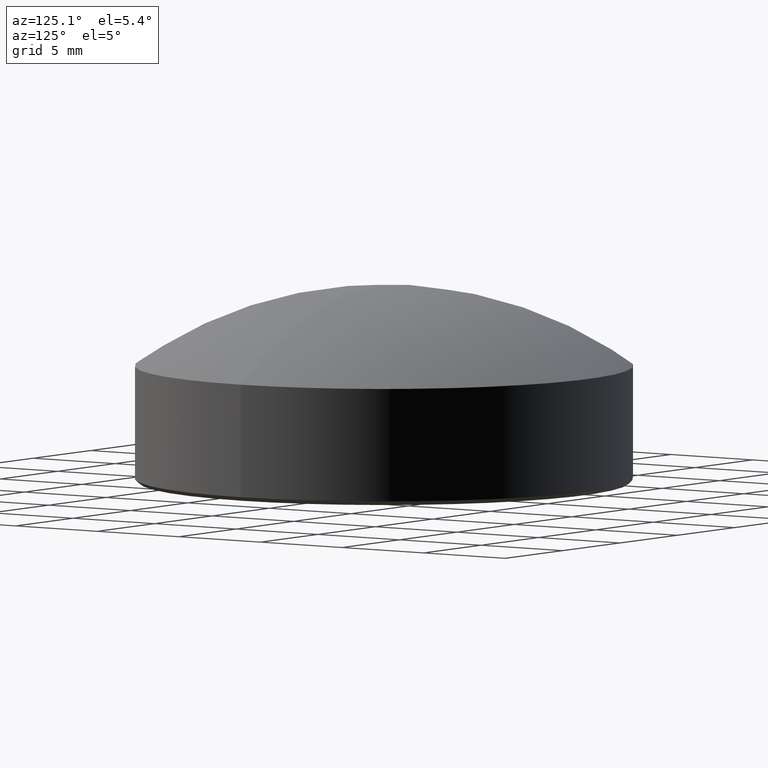
[diagram: clean part render]
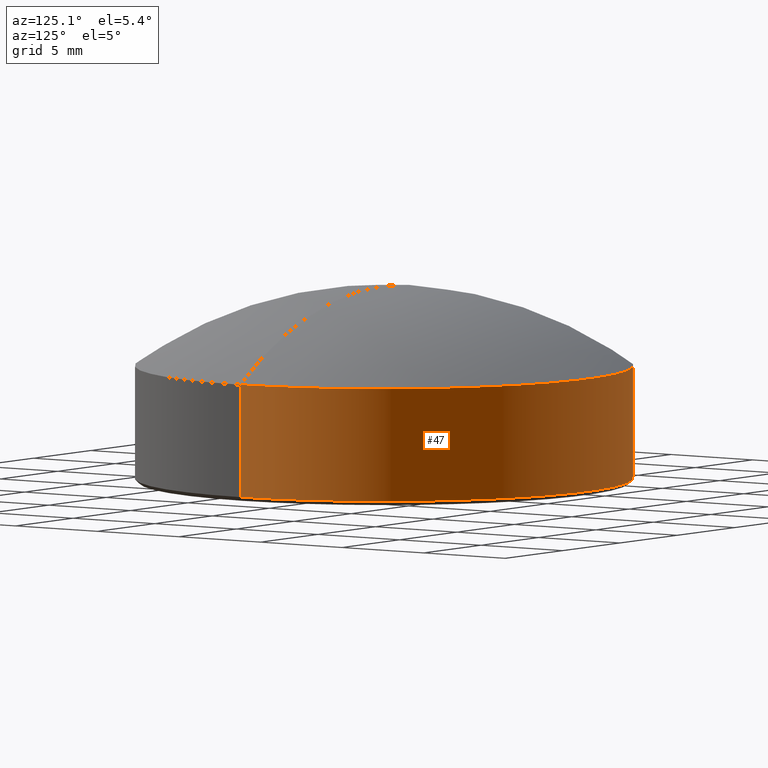
[diagram: same view with one face highlighted and labeled with its STEP entity id]
A machine part, auxiliary view. The second image highlights one B-rep face of the part: STEP entity #47.
In plain terms, the highlighted cylindrical surface (partial cylindrical patch) has radius 12.5 mm, axis along (-0, -0, -1).
Its self-contained STEP definition (entity closure, byte-faithful):
#9 = ORIENTED_EDGE ( 'NONE', *, *, #77, .F. ) ;
#12 = CYLINDRICAL_SURFACE ( 'NONE', #26, 12.50000000000000000 ) ;
#16 = VERTEX_POINT ( 'NONE', #179 ) ;
#18 = FACE_OUTER_BOUND ( 'NONE', #70, .T. ) ;
#21 = CIRCLE ( 'NONE', #49, 12.50000000000000000 ) ;
#26 = AXIS2_PLACEMENT_3D ( 'NONE', #212, #213, #29 ) ;
#29 = DIRECTION ( 'NONE',  ( -1.000000000000000000, 0.000000000000000000, 0.000000000000000000 ) ) ;
#33 = VERTEX_POINT ( 'NONE', #161 ) ;
#36 = LINE ( 'NONE', #166, #108 ) ;
#40 = CARTESIAN_POINT ( 'NONE',  ( -12.50000000000000000, 0.000000000000000000, 5.860000000000000320 ) ) ;
#43 = VERTEX_POINT ( 'NONE', #100 ) ;
#47 = ADVANCED_FACE ( 'NONE', ( #18 ), #12, .T. ) ;
#49 = AXIS2_PLACEMENT_3D ( 'NONE', #195, #66, #84 ) ;
#52 = DIRECTION ( 'NONE',  ( 1.000000000000000000, 0.000000000000000000, 0.000000000000000000 ) ) ;
#64 = ORIENTED_EDGE ( 'NONE', *, *, #191, .T. ) ;
#66 = DIRECTION ( 'NONE',  ( 0.000000000000000000, 0.000000000000000000, 1.000000000000000000 ) ) ;
#70 = EDGE_LOOP ( 'NONE', ( #9, #64, #129, #114 ) ) ;
#74 = DIRECTION ( 'NONE',  ( -0.000000000000000000, -0.000000000000000000, -1.000000000000000000 ) ) ;
#77 = EDGE_CURVE ( 'NONE', #16, #145, #21, .T. ) ;
#84 = DIRECTION ( 'NONE',  ( 1.000000000000000000, 0.000000000000000000, 0.000000000000000000 ) ) ;
#98 = VECTOR ( 'NONE', #133, 1000.000000000000000 ) ;
#100 = CARTESIAN_POINT ( 'NONE',  ( -12.50000000000000000, 0.000000000000000000, 0.2000000000000178857 ) ) ;
#108 = VECTOR ( 'NONE', #74, 1000.000000000000000 ) ;
#112 = EDGE_CURVE ( 'NONE', #33, #43, #164, .T. ) ;
#114 = ORIENTED_EDGE ( 'NONE', *, *, #122, .F. ) ;
#122 = EDGE_CURVE ( 'NONE', #145, #43, #137, .T. ) ;
#124 = CARTESIAN_POINT ( 'NONE',  ( -12.50000000000000000, 0.000000000000000000, 5.860000000000000320 ) ) ;
#129 = ORIENTED_EDGE ( 'NONE', *, *, #112, .T. ) ;
#130 = CARTESIAN_POINT ( 'NONE',  ( 0.000000000000000000, 0.000000000000000000, 0.2000000000000178857 ) ) ;
#133 = DIRECTION ( 'NONE',  ( -0.000000000000000000, -0.000000000000000000, -1.000000000000000000 ) ) ;
#137 = LINE ( 'NONE', #40, #98 ) ;
#145 = VERTEX_POINT ( 'NONE', #124 ) ;
#161 = CARTESIAN_POINT ( 'NONE',  ( 12.50000000000000000, 1.530808498934191127E-15, 0.2000000000000178857 ) ) ;
#164 = CIRCLE ( 'NONE', #192, 12.50000000000000000 ) ;
#166 = CARTESIAN_POINT ( 'NONE',  ( 12.50000000000000000, 1.530808498934191127E-15, 5.860000000000000320 ) ) ;
#179 = CARTESIAN_POINT ( 'NONE',  ( 12.50000000000000000, 1.530808498934191127E-15, 5.860000000000000320 ) ) ;
#191 = EDGE_CURVE ( 'NONE', #16, #33, #36, .T. ) ;
#192 = AXIS2_PLACEMENT_3D ( 'NONE', #130, #216, #52 ) ;
#195 = CARTESIAN_POINT ( 'NONE',  ( 0.000000000000000000, 0.000000000000000000, 5.860000000000000320 ) ) ;
#212 = CARTESIAN_POINT ( 'NONE',  ( 0.000000000000000000, 0.000000000000000000, 5.860000000000000320 ) ) ;
#213 = DIRECTION ( 'NONE',  ( -0.000000000000000000, -0.000000000000000000, -1.000000000000000000 ) ) ;
#216 = DIRECTION ( 'NONE',  ( -0.000000000000000000, -0.000000000000000000, 1.000000000000000000 ) ) ;